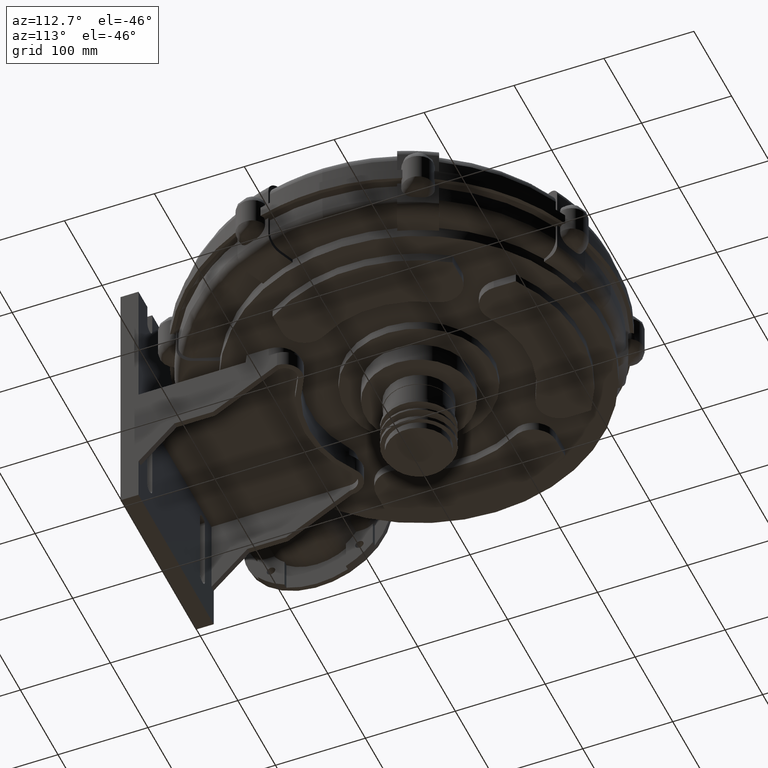
[diagram: clean part render]
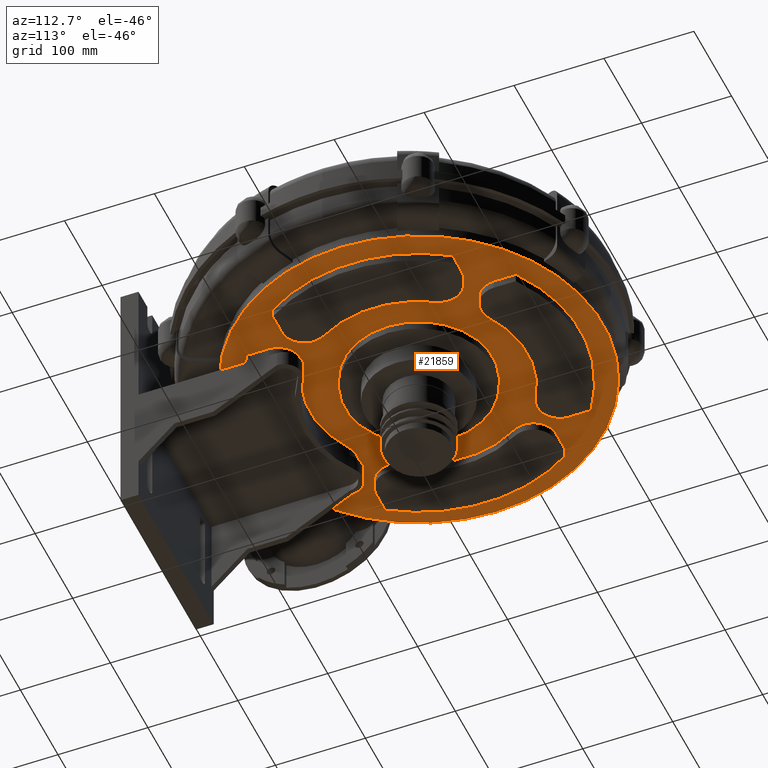
[diagram: same view with one face highlighted and labeled with its STEP entity id]
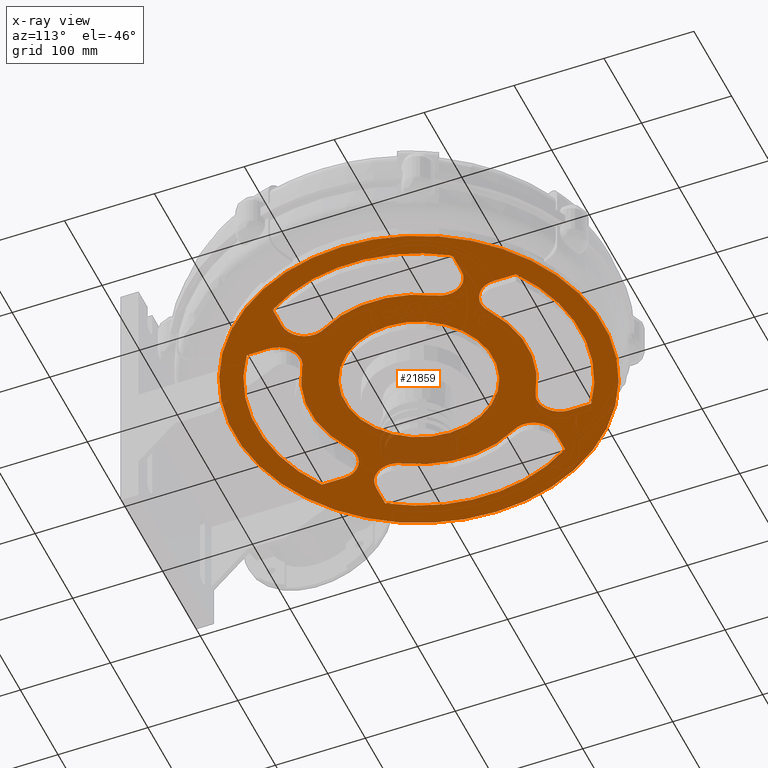
[diagram: x-ray of the same camera — body ghosted, the highlighted face saturated]
A machine part, auxiliary view. The second image highlights one B-rep face of the part: STEP entity #21859.
The next image is the same camera in x-ray: the body ghosted, the highlighted face saturated — about 5% of this face is hidden behind the body in this view.
In plain terms, the highlighted planar face has unit normal (0, 0, -1).
Its self-contained STEP definition (entity closure, byte-faithful):
#10118=CARTESIAN_POINT('',(204.99999999999997,-14.99999999999995,27.999999999999403));
#10119=VERTEX_POINT('',#10118);
#10120=CARTESIAN_POINT('',(-4.218847E-014,-14.999999999999986,27.999999999999574));
#10121=DIRECTION('',(0.0,0.0,1.0));
#10122=DIRECTION('',(-1.0,0.0,0.0));
#10123=AXIS2_PLACEMENT_3D('',#10120,#10121,#10122);
#10124=CIRCLE('',#10123,205.0);
#10125=EDGE_CURVE('',#10119,#10119,#10124,.T.);
#20839=CARTESIAN_POINT('',(103.81445437117996,47.157534246575395,27.999999999999456));
#20840=VERTEX_POINT('',#20839);
#20847=CARTESIAN_POINT('',(125.26372180324195,85.000000000000028,27.99999999999941));
#20848=VERTEX_POINT('',#20847);
#20849=CARTESIAN_POINT('',(125.26372180324194,60.000000000000043,27.999999999999432));
#20850=DIRECTION('',(8.229270E-016,4.927167E-016,1.0));
#20851=DIRECTION('',(0.857970697282479,0.513698630136987,-9.591551E-016));
#20852=AXIS2_PLACEMENT_3D('',#20849,#20850,#20851);
#20853=CIRCLE('',#20852,25.0);
#20854=EDGE_CURVE('',#20848,#20840,#20853,.T.);
#20879=CARTESIAN_POINT('',(103.81445437117998,-77.157534246575267,27.999999999999517));
#20880=VERTEX_POINT('',#20879);
#20887=CARTESIAN_POINT('',(-4.329870E-014,-14.999999999999986,27.999999999999574));
#20888=DIRECTION('',(-8.229270E-016,-4.927167E-016,-1.0));
#20889=DIRECTION('',(0.857970697282479,0.513698630136986,-9.591551E-016));
#20890=AXIS2_PLACEMENT_3D('',#20887,#20888,#20889);
#20891=CIRCLE('',#20890,121.00000000000003);
#20892=EDGE_CURVE('',#20840,#20880,#20891,.T.);
#20912=CARTESIAN_POINT('',(125.26372180324195,-115.0,27.999999999999517));
#20913=VERTEX_POINT('',#20912);
#20920=CARTESIAN_POINT('',(125.26372180324194,-89.999999999999929,27.99999999999951));
#20921=DIRECTION('',(0.0,0.0,1.0));
#20922=DIRECTION('',(0.0,1.0,0.0));
#20923=AXIS2_PLACEMENT_3D('',#20920,#20921,#20922);
#20924=CIRCLE('',#20923,25.0);
#20925=EDGE_CURVE('',#20880,#20913,#20924,.T.);
#20944=CARTESIAN_POINT('',(149.66629547095758,-115.0,27.999999999999503));
#20945=VERTEX_POINT('',#20944);
#20952=CARTESIAN_POINT('',(125.26372180324196,-114.99999999999999,27.999999999999524));
#20953=DIRECTION('',(1.0,0.0,0.0));
#20954=VECTOR('',#20953,24.402573667715643);
#20955=LINE('',#20952,#20954);
#20956=EDGE_CURVE('',#20913,#20945,#20955,.T.);
#20976=CARTESIAN_POINT('',(149.66629547095758,85.000000000000028,27.999999999999396));
#20977=VERTEX_POINT('',#20976);
#20984=CARTESIAN_POINT('',(-4.329870E-014,-14.999999999999986,27.999999999999574));
#20985=DIRECTION('',(7.975804E-016,5.329058E-016,1.0));
#20986=DIRECTION('',(-0.831479419283098,-0.555555555555556,9.592305E-016));
#20987=AXIS2_PLACEMENT_3D('',#20984,#20985,#20986);
#20988=CIRCLE('',#20987,179.99999999999997);
#20989=EDGE_CURVE('',#20945,#20977,#20988,.T.);
#21007=CARTESIAN_POINT('',(149.66629547095761,85.000000000000043,27.999999999999396));
#21008=DIRECTION('',(-1.0,0.0,0.0));
#21009=VECTOR('',#21008,24.402573667715643);
#21010=LINE('',#21007,#21009);
#21011=EDGE_CURVE('',#20977,#20848,#21010,.T.);
#21047=CARTESIAN_POINT('',(-62.157534246575423,88.814454371180034,27.999999999999563));
#21048=VERTEX_POINT('',#21047);
#21055=CARTESIAN_POINT('',(-100.00000000000006,110.26372180324202,27.999999999999588));
#21056=VERTEX_POINT('',#21055);
#21057=CARTESIAN_POINT('',(-75.000000000000071,110.26372180324202,27.999999999999563));
#21058=DIRECTION('',(-1.298931E-017,2.169452E-017,1.0));
#21059=DIRECTION('',(-0.513698630136987,0.857970697282479,-2.528585E-017));
#21060=AXIS2_PLACEMENT_3D('',#21057,#21058,#21059);
#21061=CIRCLE('',#21060,25.0);
#21062=EDGE_CURVE('',#21056,#21048,#21061,.T.);
#21087=CARTESIAN_POINT('',(62.157534246575246,88.814454371180034,27.999999999999467));
#21088=VERTEX_POINT('',#21087);
#21095=CARTESIAN_POINT('',(-4.218847E-014,-14.999999999999986,27.999999999999574));
#21096=DIRECTION('',(1.298931E-017,-2.169452E-017,-1.0));
#21097=DIRECTION('',(-0.513698630136986,0.857970697282479,-2.528585E-017));
#21098=AXIS2_PLACEMENT_3D('',#21095,#21096,#21097);
#21099=CIRCLE('',#21098,121.00000000000003);
#21100=EDGE_CURVE('',#21048,#21088,#21099,.T.);
#21120=CARTESIAN_POINT('',(99.999999999999986,110.26372180324199,27.999999999999421));
#21121=VERTEX_POINT('',#21120);
#21128=CARTESIAN_POINT('',(74.999999999999915,110.26372180324199,27.999999999999446));
#21129=DIRECTION('',(0.0,0.0,1.0));
#21130=DIRECTION('',(-1.0,0.0,0.0));
#21131=AXIS2_PLACEMENT_3D('',#21128,#21129,#21130);
#21132=CIRCLE('',#21131,25.0);
#21133=EDGE_CURVE('',#21088,#21121,#21132,.T.);
#21152=CARTESIAN_POINT('',(99.999999999999986,134.66629547095764,27.99999999999941));
#21153=VERTEX_POINT('',#21152);
#21160=CARTESIAN_POINT('',(99.999999999999986,110.26372180324201,27.999999999999424));
#21161=DIRECTION('',(0.0,1.0,0.0));
#21162=VECTOR('',#21161,24.402573667715657);
#21163=LINE('',#21160,#21162);
#21164=EDGE_CURVE('',#21121,#21153,#21163,.T.);
#21184=CARTESIAN_POINT('',(-100.00000000000006,134.66629547095766,27.999999999999574));
#21185=VERTEX_POINT('',#21184);
#21192=CARTESIAN_POINT('',(-4.218847E-014,-14.999999999999986,27.999999999999574));
#21193=DIRECTION('',(1.235725E-017,-1.849464E-017,1.0));
#21194=DIRECTION('',(0.555555555555556,-0.831479419283098,-2.224306E-017));
#21195=AXIS2_PLACEMENT_3D('',#21192,#21193,#21194);
#21196=CIRCLE('',#21195,180.0);
#21197=EDGE_CURVE('',#21153,#21185,#21196,.T.);
#21215=CARTESIAN_POINT('',(-100.00000000000004,134.66629547095766,27.99999999999957));
#21216=DIRECTION('',(0.0,-1.0,0.0));
#21217=VECTOR('',#21216,24.402573667715643);
#21218=LINE('',#21215,#21217);
#21219=EDGE_CURVE('',#21185,#21056,#21218,.T.);
#21255=CARTESIAN_POINT('',(-103.81445437118006,-77.157534246575352,27.999999999999687));
#21256=VERTEX_POINT('',#21255);
#21263=CARTESIAN_POINT('',(-125.26372180324208,-115.0,27.999999999999723));
#21264=VERTEX_POINT('',#21263);
#21265=CARTESIAN_POINT('',(-125.26372180324205,-90.0,27.999999999999705));
#21266=DIRECTION('',(8.229270E-016,4.927167E-016,1.0));
#21267=DIRECTION('',(-0.857970697282479,-0.513698630136987,9.591551E-016));
#21268=AXIS2_PLACEMENT_3D('',#21265,#21266,#21267);
#21269=CIRCLE('',#21268,25.0);
#21270=EDGE_CURVE('',#21264,#21256,#21269,.T.);
#21295=CARTESIAN_POINT('',(-103.81445437118009,47.157534246575317,27.999999999999623));
#21296=VERTEX_POINT('',#21295);
#21303=CARTESIAN_POINT('',(-4.218847E-014,-14.999999999999986,27.999999999999574));
#21304=DIRECTION('',(-8.229270E-016,-4.927167E-016,-1.0));
#21305=DIRECTION('',(-0.857970697282479,-0.513698630136986,9.591551E-016));
#21306=AXIS2_PLACEMENT_3D('',#21303,#21304,#21305);
#21307=CIRCLE('',#21306,121.00000000000003);
#21308=EDGE_CURVE('',#21256,#21296,#21307,.T.);
#21328=CARTESIAN_POINT('',(-125.26372180324203,85.000000000000028,27.999999999999616));
#21329=VERTEX_POINT('',#21328);
#21336=CARTESIAN_POINT('',(-125.26372180324203,59.999999999999972,27.999999999999634));
#21337=DIRECTION('',(0.0,0.0,1.0));
#21338=DIRECTION('',(0.0,-1.0,0.0));
#21339=AXIS2_PLACEMENT_3D('',#21336,#21337,#21338);
#21340=CIRCLE('',#21339,25.0);
#21341=EDGE_CURVE('',#21296,#21329,#21340,.T.);
#21360=CARTESIAN_POINT('',(-149.66629547095766,85.000000000000028,27.999999999999645));
#21361=VERTEX_POINT('',#21360);
#21368=CARTESIAN_POINT('',(-125.26372180324203,85.000000000000028,27.999999999999623));
#21369=DIRECTION('',(-1.0,0.0,0.0));
#21370=VECTOR('',#21369,24.402573667715629);
#21371=LINE('',#21368,#21370);
#21372=EDGE_CURVE('',#21329,#21361,#21371,.T.);
#21392=CARTESIAN_POINT('',(-149.66629547095772,-115.0,27.999999999999741));
#21393=VERTEX_POINT('',#21392);
#21400=CARTESIAN_POINT('',(-4.218847E-014,-14.999999999999986,27.999999999999574));
#21401=DIRECTION('',(7.975804E-016,5.329058E-016,1.0));
#21402=DIRECTION('',(0.831479419283098,0.555555555555556,-9.592305E-016));
#21403=AXIS2_PLACEMENT_3D('',#21400,#21401,#21402);
#21404=CIRCLE('',#21403,179.99999999999997);
#21405=EDGE_CURVE('',#21361,#21393,#21404,.T.);
#21423=CARTESIAN_POINT('',(-149.66629547095769,-114.99999999999999,27.999999999999741));
#21424=DIRECTION('',(1.0,0.0,0.0));
#21425=VECTOR('',#21424,24.402573667715643);
#21426=LINE('',#21423,#21425);
#21427=EDGE_CURVE('',#21393,#21264,#21426,.T.);
#21453=CARTESIAN_POINT('',(62.157534246575317,-118.81445437118001,27.999999999999574));
#21454=VERTEX_POINT('',#21453);
#21461=CARTESIAN_POINT('',(99.999999999999943,-140.26372180324202,27.999999999999552));
#21462=VERTEX_POINT('',#21461);
#21463=CARTESIAN_POINT('',(74.999999999999972,-140.26372180324199,27.999999999999574));
#21464=DIRECTION('',(-1.298931E-017,2.169452E-017,1.0));
#21465=DIRECTION('',(0.513698630136986,-0.857970697282479,2.528585E-017));
#21466=AXIS2_PLACEMENT_3D('',#21463,#21464,#21465);
#21467=CIRCLE('',#21466,25.0);
#21468=EDGE_CURVE('',#21462,#21454,#21467,.T.);
#21484=CARTESIAN_POINT('',(-62.157534246575352,-118.81445437118003,27.99999999999967));
#21485=VERTEX_POINT('',#21484);
#21492=CARTESIAN_POINT('',(-4.218847E-014,-14.999999999999986,27.999999999999574));
#21493=DIRECTION('',(1.298931E-017,-2.169452E-017,-1.0));
#21494=DIRECTION('',(0.513698630136986,-0.857970697282479,2.528585E-017));
#21495=AXIS2_PLACEMENT_3D('',#21492,#21493,#21494);
#21496=CIRCLE('',#21495,121.00000000000003);
#21497=EDGE_CURVE('',#21454,#21485,#21496,.T.);
#21514=CARTESIAN_POINT('',(-100.00000000000009,-140.26372180324199,27.999999999999716));
#21515=VERTEX_POINT('',#21514);
#21522=CARTESIAN_POINT('',(-75.000000000000014,-140.26372180324199,27.999999999999694));
#21523=DIRECTION('',(0.0,0.0,1.0));
#21524=DIRECTION('',(1.0,0.0,0.0));
#21525=AXIS2_PLACEMENT_3D('',#21522,#21523,#21524);
#21526=CIRCLE('',#21525,25.0);
#21527=EDGE_CURVE('',#21485,#21515,#21526,.T.);
#21538=CARTESIAN_POINT('',(-100.00000000000009,-164.66629547095761,27.999999999999723));
#21539=VERTEX_POINT('',#21538);
#21546=CARTESIAN_POINT('',(-100.00000000000009,-140.26372180324196,27.999999999999712));
#21547=DIRECTION('',(0.0,-1.0,0.0));
#21548=VECTOR('',#21547,24.402573667715643);
#21549=LINE('',#21546,#21548);
#21550=EDGE_CURVE('',#21515,#21539,#21549,.T.);
#21573=CARTESIAN_POINT('',(99.999999999999943,-164.66629547095764,27.999999999999563));
#21574=VERTEX_POINT('',#21573);
#21581=CARTESIAN_POINT('',(-4.218847E-014,-14.999999999999986,27.999999999999574));
#21582=DIRECTION('',(1.235725E-017,-1.849464E-017,1.0));
#21583=DIRECTION('',(-0.555555555555556,0.831479419283098,2.224306E-017));
#21584=AXIS2_PLACEMENT_3D('',#21581,#21582,#21583);
#21585=CIRCLE('',#21584,179.99999999999997);
#21586=EDGE_CURVE('',#21539,#21574,#21585,.T.);
#21598=CARTESIAN_POINT('',(99.999999999999943,-164.66629547095764,27.999999999999567));
#21599=DIRECTION('',(0.0,1.0,0.0));
#21600=VECTOR('',#21599,24.402573667715643);
#21601=LINE('',#21598,#21600);
#21602=EDGE_CURVE('',#21574,#21462,#21601,.T.);
#21752=CARTESIAN_POINT('',(-82.500000000000028,-14.99999999999998,27.999999999999634));
#21753=VERTEX_POINT('',#21752);
#21754=CARTESIAN_POINT('',(-4.218847E-014,-14.999999999999986,27.999999999999574));
#21755=DIRECTION('',(0.0,0.0,1.0));
#21756=DIRECTION('',(1.0,0.0,0.0));
#21757=AXIS2_PLACEMENT_3D('',#21754,#21755,#21756);
#21758=CIRCLE('',#21757,82.5);
#21759=EDGE_CURVE('',#21753,#21753,#21758,.T.);
#21816=CARTESIAN_POINT('',(-4.218847E-014,-14.999999999999986,27.999999999999574));
#21817=DIRECTION('',(0.0,0.0,-1.0));
#21818=DIRECTION('',(-1.0,0.0,0.0));
#21819=AXIS2_PLACEMENT_3D('',#21816,#21817,#21818);
#21820=PLANE('',#21819);
#21821=ORIENTED_EDGE('',*,*,#10125,.F.);
#21822=EDGE_LOOP('',(#21821));
#21823=FACE_OUTER_BOUND('',#21822,.T.);
#21824=ORIENTED_EDGE('',*,*,#20854,.T.);
#21825=ORIENTED_EDGE('',*,*,#20892,.T.);
#21826=ORIENTED_EDGE('',*,*,#20925,.T.);
#21827=ORIENTED_EDGE('',*,*,#20956,.T.);
#21828=ORIENTED_EDGE('',*,*,#20989,.T.);
#21829=ORIENTED_EDGE('',*,*,#21011,.T.);
#21830=EDGE_LOOP('',(#21824,#21825,#21826,#21827,#21828,#21829));
#21831=FACE_BOUND('',#21830,.T.);
#21832=ORIENTED_EDGE('',*,*,#21062,.T.);
#21833=ORIENTED_EDGE('',*,*,#21100,.T.);
#21834=ORIENTED_EDGE('',*,*,#21133,.T.);
#21835=ORIENTED_EDGE('',*,*,#21164,.T.);
#21836=ORIENTED_EDGE('',*,*,#21197,.T.);
#21837=ORIENTED_EDGE('',*,*,#21219,.T.);
#21838=EDGE_LOOP('',(#21832,#21833,#21834,#21835,#21836,#21837));
#21839=FACE_BOUND('',#21838,.T.);
#21840=ORIENTED_EDGE('',*,*,#21270,.T.);
#21841=ORIENTED_EDGE('',*,*,#21308,.T.);
#21842=ORIENTED_EDGE('',*,*,#21341,.T.);
#21843=ORIENTED_EDGE('',*,*,#21372,.T.);
#21844=ORIENTED_EDGE('',*,*,#21405,.T.);
#21845=ORIENTED_EDGE('',*,*,#21427,.T.);
#21846=EDGE_LOOP('',(#21840,#21841,#21842,#21843,#21844,#21845));
#21847=FACE_BOUND('',#21846,.T.);
#21848=ORIENTED_EDGE('',*,*,#21468,.T.);
#21849=ORIENTED_EDGE('',*,*,#21497,.T.);
#21850=ORIENTED_EDGE('',*,*,#21527,.T.);
#21851=ORIENTED_EDGE('',*,*,#21550,.T.);
#21852=ORIENTED_EDGE('',*,*,#21586,.T.);
#21853=ORIENTED_EDGE('',*,*,#21602,.T.);
#21854=EDGE_LOOP('',(#21848,#21849,#21850,#21851,#21852,#21853));
#21855=FACE_BOUND('',#21854,.T.);
#21856=ORIENTED_EDGE('',*,*,#21759,.T.);
#21857=EDGE_LOOP('',(#21856));
#21858=FACE_BOUND('',#21857,.T.);
#21859=ADVANCED_FACE('',(#21823,#21831,#21839,#21847,#21855,#21858),#21820,.T.);